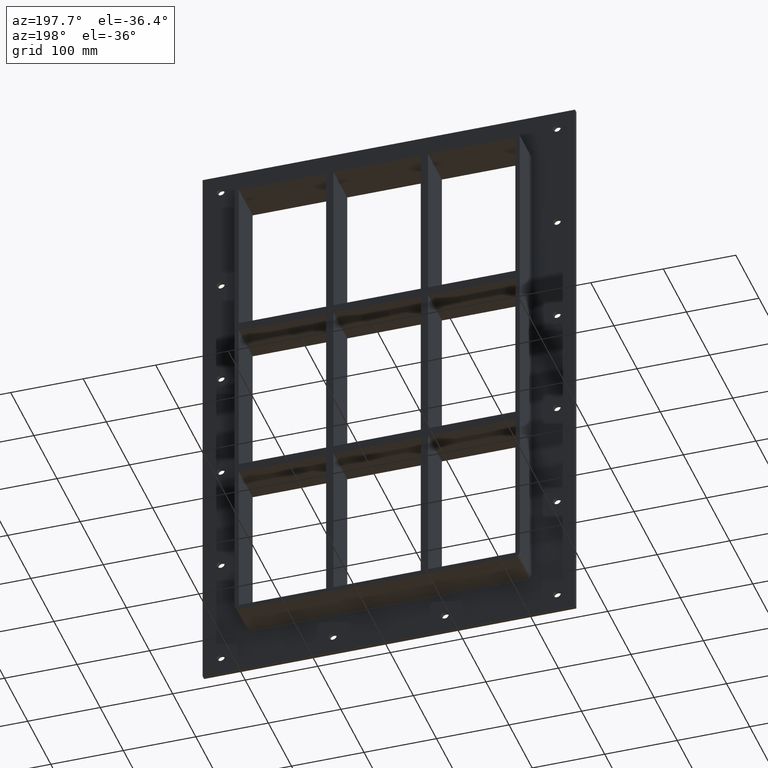
[diagram: clean part render]
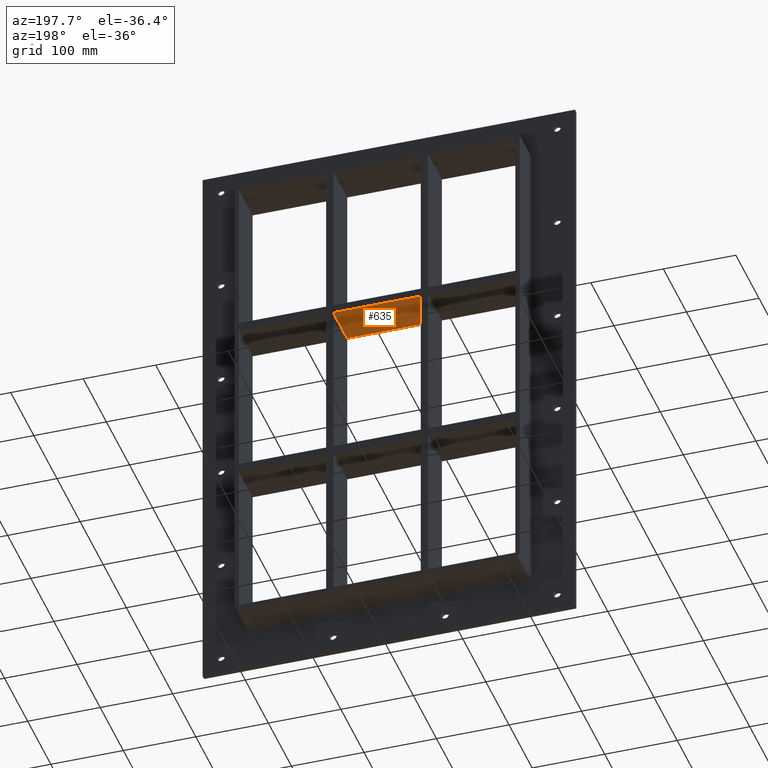
[diagram: same view with one face highlighted and labeled with its STEP entity id]
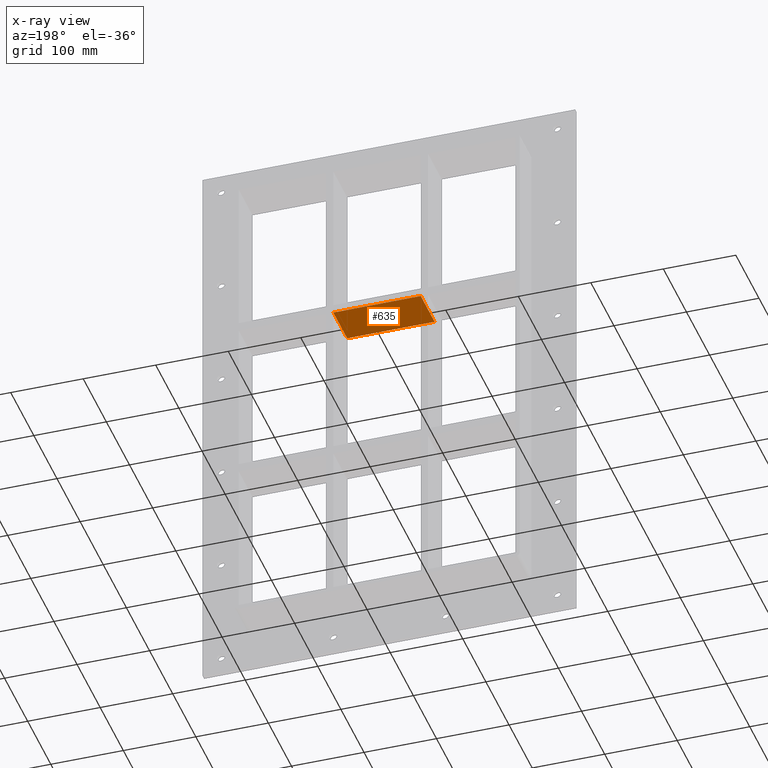
[diagram: x-ray of the same camera — body ghosted, the highlighted face saturated]
A machine part, auxiliary view. The second image highlights one B-rep face of the part: STEP entity #635.
The next image is the same camera in x-ray: the body ghosted, the highlighted face saturated — about 0% of this face is hidden behind the body in this view.
In plain terms, the highlighted planar face has unit normal (0, 0, -1).
Its self-contained STEP definition (entity closure, byte-faithful):
#596=CARTESIAN_POINT('',(190.75000000000728,-3.0,108.99999999998984));
#597=DIRECTION('',(0.0,0.0,-1.0));
#598=DIRECTION('',(-1.0,0.0,0.0));
#599=AXIS2_PLACEMENT_3D('',#596,#597,#598);
#600=PLANE('',#599);
#601=CARTESIAN_POINT('',(60.249999999997868,-3.0,108.99999999998984));
#602=VERTEX_POINT('',#601);
#603=CARTESIAN_POINT('',(60.249999999997868,57.0,108.99999999998984));
#604=VERTEX_POINT('',#603);
#605=CARTESIAN_POINT('',(60.249999999997883,-3.0,108.99999999998983));
#606=DIRECTION('',(0.0,1.0,0.0));
#607=VECTOR('',#606,60.0);
#608=LINE('',#605,#607);
#609=EDGE_CURVE('',#602,#604,#608,.T.);
#610=ORIENTED_EDGE('',*,*,#609,.F.);
#611=CARTESIAN_POINT('',(-60.249999999996362,-3.0,108.99999999998983));
#612=VERTEX_POINT('',#611);
#613=CARTESIAN_POINT('',(60.249999999997868,-3.0,108.99999999998984));
#614=DIRECTION('',(-1.0,0.0,0.0));
#615=VECTOR('',#614,120.49999999999423);
#616=LINE('',#613,#615);
#617=EDGE_CURVE('',#602,#612,#616,.T.);
#618=ORIENTED_EDGE('',*,*,#617,.T.);
#619=CARTESIAN_POINT('',(-60.249999999996362,57.0,108.99999999998983));
#620=VERTEX_POINT('',#619);
#621=CARTESIAN_POINT('',(-60.249999999996355,57.0,108.99999999998983));
#622=DIRECTION('',(0.0,-1.0,0.0));
#623=VECTOR('',#622,60.0);
#624=LINE('',#621,#623);
#625=EDGE_CURVE('',#620,#612,#624,.T.);
#626=ORIENTED_EDGE('',*,*,#625,.F.);
#627=CARTESIAN_POINT('',(60.249999999997868,57.0,108.99999999998984));
#628=DIRECTION('',(-1.0,0.0,0.0));
#629=VECTOR('',#628,120.49999999999423);
#630=LINE('',#627,#629);
#631=EDGE_CURVE('',#604,#620,#630,.T.);
#632=ORIENTED_EDGE('',*,*,#631,.F.);
#633=EDGE_LOOP('',(#610,#618,#626,#632));
#634=FACE_OUTER_BOUND('',#633,.T.);
#635=ADVANCED_FACE('',(#634),#600,.T.);